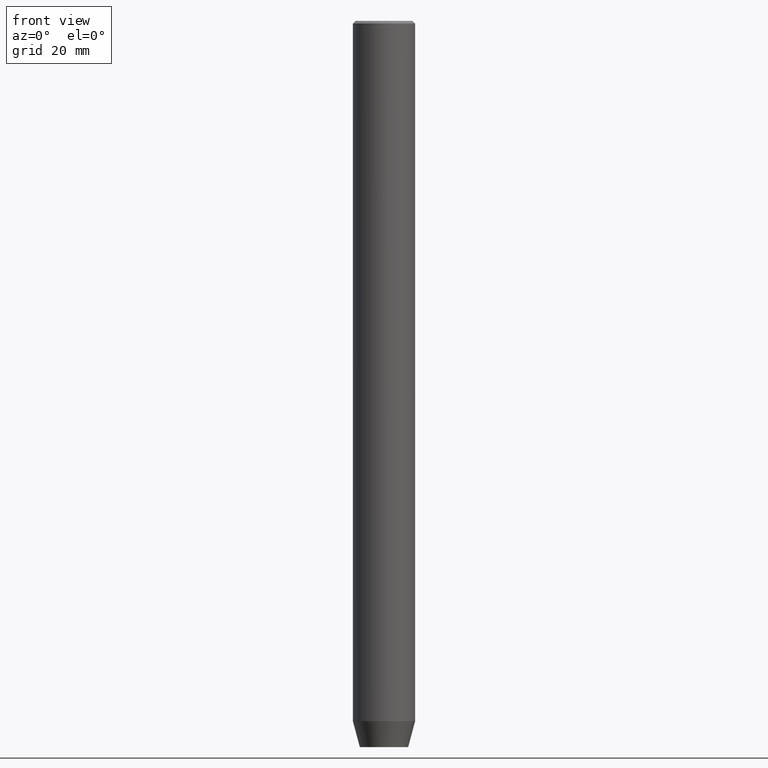
[diagram: clean part render]
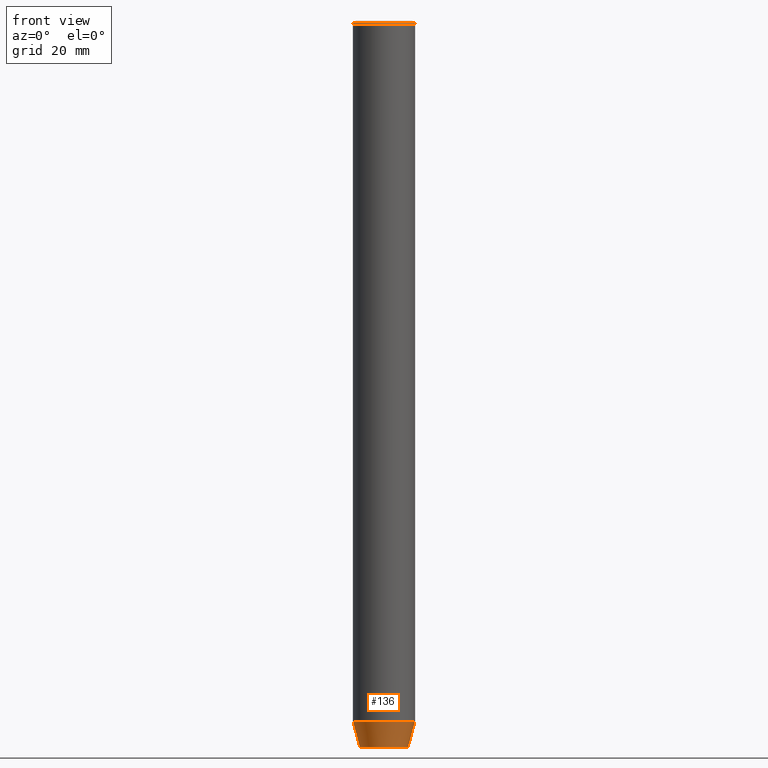
[diagram: same view with one face highlighted and labeled with its STEP entity id]
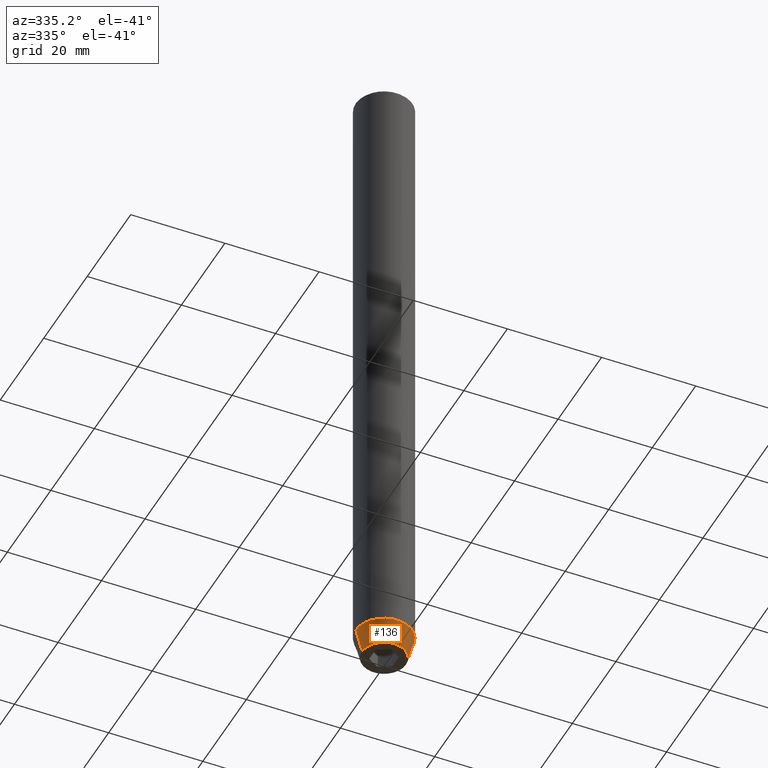
[diagram: same view with one face highlighted and labeled with its STEP entity id]
A machine part, front view. The second image highlights one B-rep face of the part: STEP entity #136.
A second angle (auxiliary view) of the same face is appended — the face is thin or edge-on in the first view.
In plain terms, the highlighted conical surface has half-angle 15 deg.
Its self-contained STEP definition (entity closure, byte-faithful):
#1 = DIRECTION ( 'NONE',  ( -0.000000000000000000, -0.000000000000000000, 1.000000000000000000 ) ) ;
#4 = VERTEX_POINT ( 'NONE', #152 ) ;
#9 = DIRECTION ( 'NONE',  ( -0.000000000000000000, -0.000000000000000000, 1.000000000000000000 ) ) ;
#29 = DIRECTION ( 'NONE',  ( -0.2588190451025214611, 3.169619151431774186E-17, 0.9659258262890679791 ) ) ;
#30 = VERTEX_POINT ( 'NONE', #381 ) ;
#41 = DIRECTION ( 'NONE',  ( 1.000000000000000000, 0.000000000000000000, 0.000000000000000000 ) ) ;
#58 = FACE_OUTER_BOUND ( 'NONE', #104, .T. ) ;
#66 = CARTESIAN_POINT ( 'NONE',  ( 6.000000000000000000, 0.000000000000000000, -135.0000000000000000 ) ) ;
#67 = DIRECTION ( 'NONE',  ( 1.000000000000000000, 0.000000000000000000, 0.000000000000000000 ) ) ;
#77 = VERTEX_POINT ( 'NONE', #506 ) ;
#84 = CARTESIAN_POINT ( 'NONE',  ( -6.000000000000000000, 7.347880794884119736E-16, -135.0000000000000000 ) ) ;
#89 = ORIENTED_EDGE ( 'NONE', *, *, #352, .T. ) ;
#100 = CONICAL_SURFACE ( 'NONE', #264, 6.000000000000000000, 0.2617993877991502405 ) ;
#104 = EDGE_LOOP ( 'NONE', ( #370, #464, #89, #529 ) ) ;
#121 = CARTESIAN_POINT ( 'NONE',  ( 4.660254037844381081, 0.000000000000000000, -140.0000000000000000 ) ) ;
#131 = AXIS2_PLACEMENT_3D ( 'NONE', #583, #1, #414 ) ;
#136 = ADVANCED_FACE ( 'NONE', ( #58 ), #100, .T. ) ;
#152 = CARTESIAN_POINT ( 'NONE',  ( 6.000000000000000000, 0.000000000000000000, -135.0000000000000000 ) ) ;
#165 = DIRECTION ( 'NONE',  ( -0.000000000000000000, -0.000000000000000000, 1.000000000000000000 ) ) ;
#167 = CARTESIAN_POINT ( 'NONE',  ( 0.000000000000000000, 0.000000000000000000, -135.0000000000000000 ) ) ;
#168 = LINE ( 'NONE', #84, #252 ) ;
#252 = VECTOR ( 'NONE', #29, 1000.000000000000114 ) ;
#264 = AXIS2_PLACEMENT_3D ( 'NONE', #476, #9, #67 ) ;
#269 = EDGE_CURVE ( 'NONE', #30, #77, #168, .T. ) ;
#322 = AXIS2_PLACEMENT_3D ( 'NONE', #167, #165, #41 ) ;
#337 = LINE ( 'NONE', #66, #418 ) ;
#349 = DIRECTION ( 'NONE',  ( 0.2588190451025214611, 0.000000000000000000, 0.9659258262890679791 ) ) ;
#352 = EDGE_CURVE ( 'NONE', #415, #4, #337, .T. ) ;
#370 = ORIENTED_EDGE ( 'NONE', *, *, #269, .F. ) ;
#381 = CARTESIAN_POINT ( 'NONE',  ( -4.660254037844381081, 6.527522992771884330E-16, -140.0000000000000000 ) ) ;
#414 = DIRECTION ( 'NONE',  ( 1.000000000000000000, 0.000000000000000000, 0.000000000000000000 ) ) ;
#415 = VERTEX_POINT ( 'NONE', #121 ) ;
#418 = VECTOR ( 'NONE', #349, 1000.000000000000114 ) ;
#464 = ORIENTED_EDGE ( 'NONE', *, *, #548, .T. ) ;
#476 = CARTESIAN_POINT ( 'NONE',  ( 0.000000000000000000, 0.000000000000000000, -135.0000000000000000 ) ) ;
#480 = EDGE_CURVE ( 'NONE', #77, #4, #499, .T. ) ;
#499 = CIRCLE ( 'NONE', #322, 6.000000000000000000 ) ;
#500 = CIRCLE ( 'NONE', #131, 4.660254037844381081 ) ;
#506 = CARTESIAN_POINT ( 'NONE',  ( -6.000000000000000000, 7.347880794884119736E-16, -135.0000000000000000 ) ) ;
#529 = ORIENTED_EDGE ( 'NONE', *, *, #480, .F. ) ;
#548 = EDGE_CURVE ( 'NONE', #30, #415, #500, .T. ) ;
#583 = CARTESIAN_POINT ( 'NONE',  ( 0.000000000000000000, 0.000000000000000000, -140.0000000000000000 ) ) ;